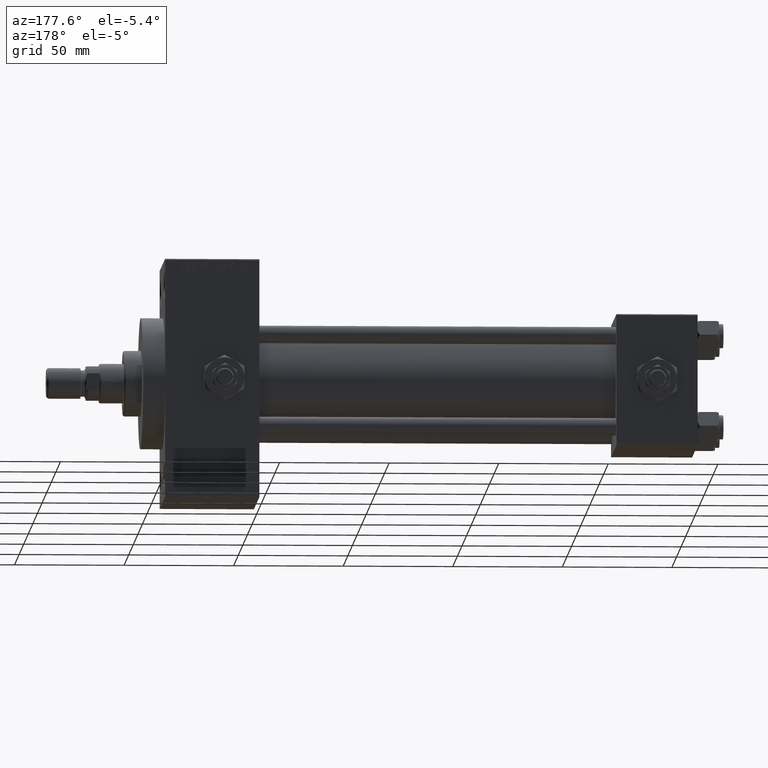
[diagram: clean part render]
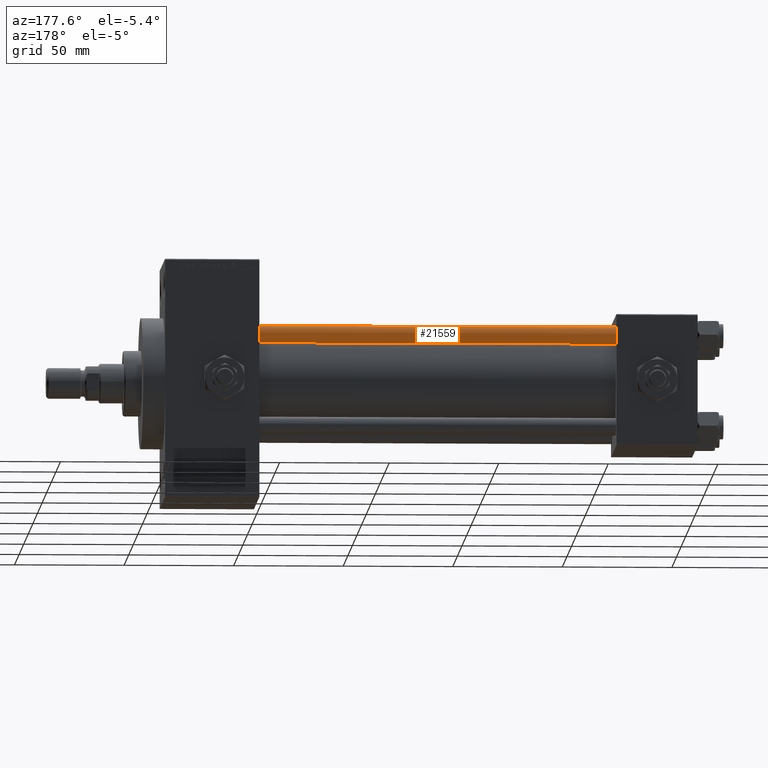
[diagram: same view with one face highlighted and labeled with its STEP entity id]
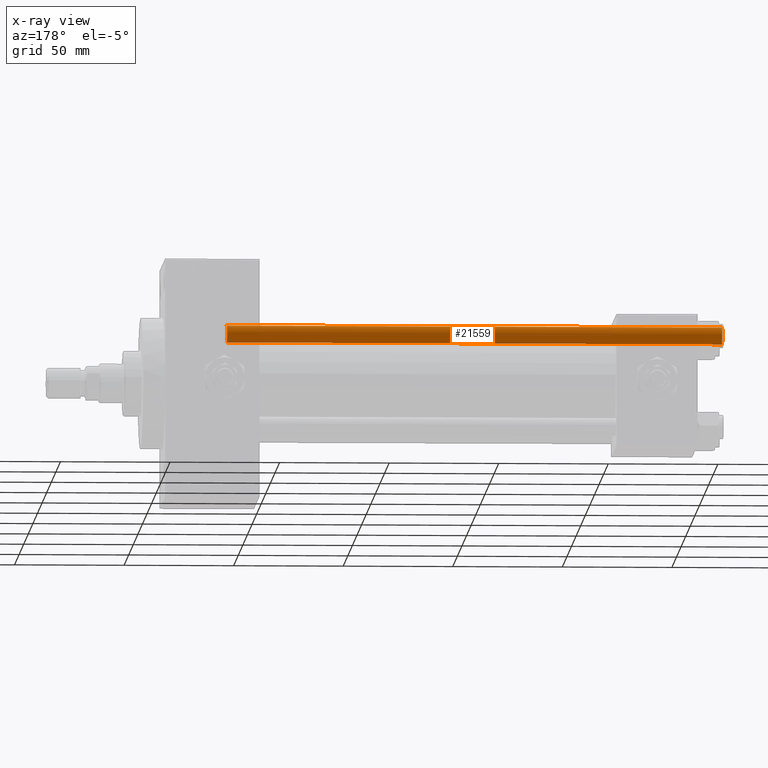
[diagram: x-ray of the same camera — body ghosted, the highlighted face saturated]
A machine part, auxiliary view. The second image highlights one B-rep face of the part: STEP entity #21559.
The next image is the same camera in x-ray: the body ghosted, the highlighted face saturated — about 0% of this face is hidden behind the body in this view.
In plain terms, the highlighted cylindrical surface (edge-blend (fillet) strip) has radius 4 mm, axis along (-1, -0, 0).
Its self-contained STEP definition (entity closure, byte-faithful):
#514 = DIRECTION ( 'NONE',  ( 1.000000000000000000, 0.000000000000000000, 0.000000000000000000 ) ) ;
#851 = AXIS2_PLACEMENT_3D ( 'NONE', #45218, #26087, #25352 ) ;
#4223 = ORIENTED_EDGE ( 'NONE', *, *, #14376, .T. ) ;
#7701 = AXIS2_PLACEMENT_3D ( 'NONE', #25590, #40952, #26835 ) ;
#13357 = DIRECTION ( 'NONE',  ( -0.000000000000000000, -0.000000000000000000, -1.000000000000000000 ) ) ;
#13622 = VERTEX_POINT ( 'NONE', #39863 ) ;
#14376 = EDGE_CURVE ( 'NONE', #16387, #24323, #41592, .T. ) ;
#15762 = CIRCLE ( 'NONE', #7701, 4.000000000000000000 ) ;
#16387 = VERTEX_POINT ( 'NONE', #37169 ) ;
#17559 = FACE_OUTER_BOUND ( 'NONE', #38076, .T. ) ;
#17845 = CARTESIAN_POINT ( 'NONE',  ( -4.000000000000000000, 0.000000000000000000, 0.5000000000002224887 ) ) ;
#17941 = CARTESIAN_POINT ( 'NONE',  ( 4.000000000000000000, 4.898587196589411843E-16, 227.0000000000000000 ) ) ;
#18291 = CYLINDRICAL_SURFACE ( 'NONE', #851, 4.000000000000000000 ) ;
#19593 = CIRCLE ( 'NONE', #22827, 4.000000000000000000 ) ;
#21559 = ADVANCED_FACE ( 'NONE', ( #17559 ), #18291, .T. ) ;
#22827 = AXIS2_PLACEMENT_3D ( 'NONE', #39748, #34997, #514 ) ;
#23179 = EDGE_CURVE ( 'NONE', #13622, #35416, #44314, .T. ) ;
#23380 = VECTOR ( 'NONE', #13357, 1000.000000000000000 ) ;
#24323 = VERTEX_POINT ( 'NONE', #30646 ) ;
#25352 = DIRECTION ( 'NONE',  ( -1.000000000000000000, 0.000000000000000000, 0.000000000000000000 ) ) ;
#25514 = ORIENTED_EDGE ( 'NONE', *, *, #37188, .T. ) ;
#25590 = CARTESIAN_POINT ( 'NONE',  ( 0.000000000000000000, 0.000000000000000000, 226.5000000000001421 ) ) ;
#26087 = DIRECTION ( 'NONE',  ( -0.000000000000000000, -0.000000000000000000, -1.000000000000000000 ) ) ;
#26835 = DIRECTION ( 'NONE',  ( 1.000000000000000000, 0.000000000000000000, 0.000000000000000000 ) ) ;
#29449 = CARTESIAN_POINT ( 'NONE',  ( -4.000000000000000000, 0.000000000000000000, 227.0000000000000000 ) ) ;
#30452 = VECTOR ( 'NONE', #33305, 1000.000000000000000 ) ;
#30646 = CARTESIAN_POINT ( 'NONE',  ( 4.000000000000000000, 4.898587196589411843E-16, 0.5000000000002224887 ) ) ;
#32615 = EDGE_CURVE ( 'NONE', #24323, #35416, #19593, .T. ) ;
#33305 = DIRECTION ( 'NONE',  ( -0.000000000000000000, -0.000000000000000000, -1.000000000000000000 ) ) ;
#34997 = DIRECTION ( 'NONE',  ( -0.000000000000000000, -0.000000000000000000, 1.000000000000000000 ) ) ;
#35416 = VERTEX_POINT ( 'NONE', #17845 ) ;
#37169 = CARTESIAN_POINT ( 'NONE',  ( 4.000000000000000000, 4.898587196589411843E-16, 226.5000000000001421 ) ) ;
#37188 = EDGE_CURVE ( 'NONE', #13622, #16387, #15762, .T. ) ;
#38076 = EDGE_LOOP ( 'NONE', ( #25514, #4223, #41724, #42690 ) ) ;
#39748 = CARTESIAN_POINT ( 'NONE',  ( 0.000000000000000000, 0.000000000000000000, 0.5000000000002224887 ) ) ;
#39863 = CARTESIAN_POINT ( 'NONE',  ( -4.000000000000000000, 0.000000000000000000, 226.5000000000001421 ) ) ;
#40952 = DIRECTION ( 'NONE',  ( 0.000000000000000000, 0.000000000000000000, -1.000000000000000000 ) ) ;
#41592 = LINE ( 'NONE', #17941, #30452 ) ;
#41724 = ORIENTED_EDGE ( 'NONE', *, *, #32615, .T. ) ;
#42690 = ORIENTED_EDGE ( 'NONE', *, *, #23179, .F. ) ;
#44314 = LINE ( 'NONE', #29449, #23380 ) ;
#45218 = CARTESIAN_POINT ( 'NONE',  ( 0.000000000000000000, 0.000000000000000000, 227.0000000000000000 ) ) ;